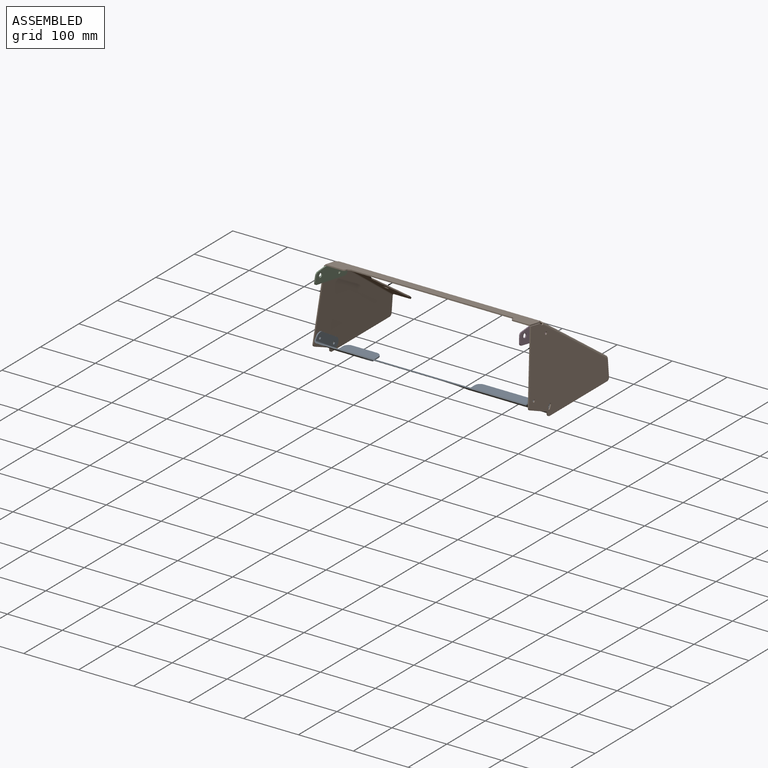
[diagram: assembled view]
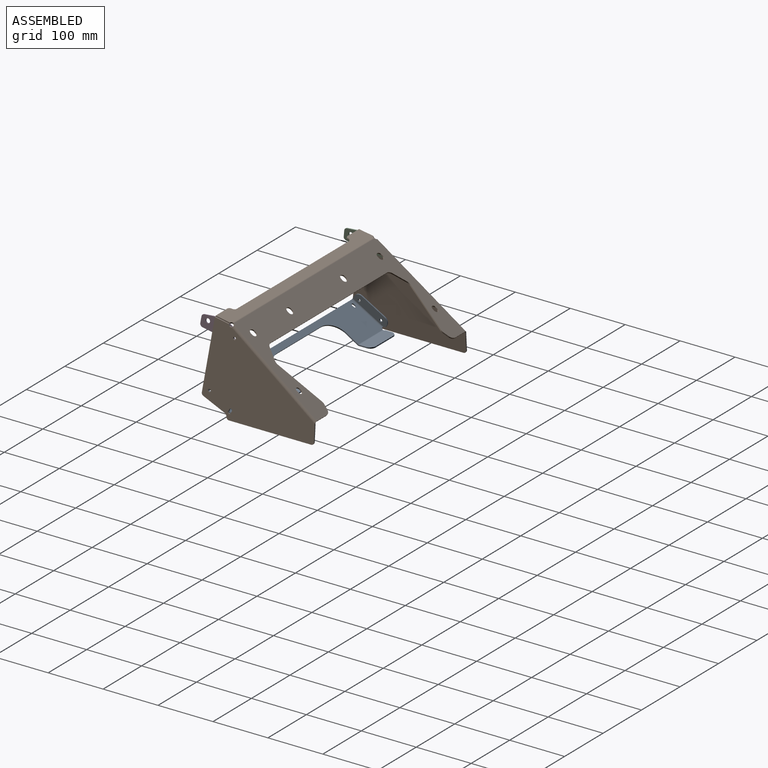
[diagram: assembled view, second angle]
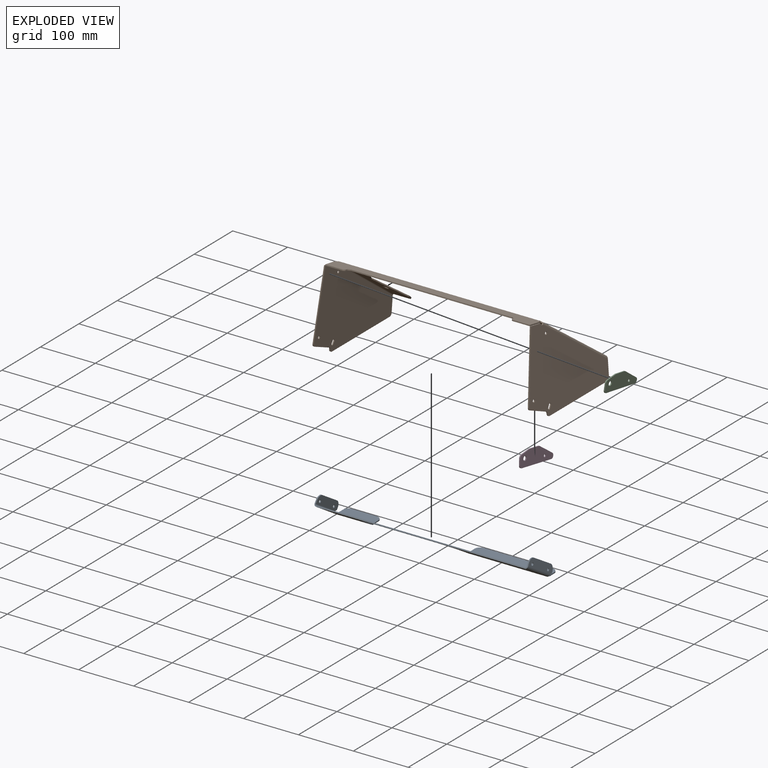
[diagram: exploded view]
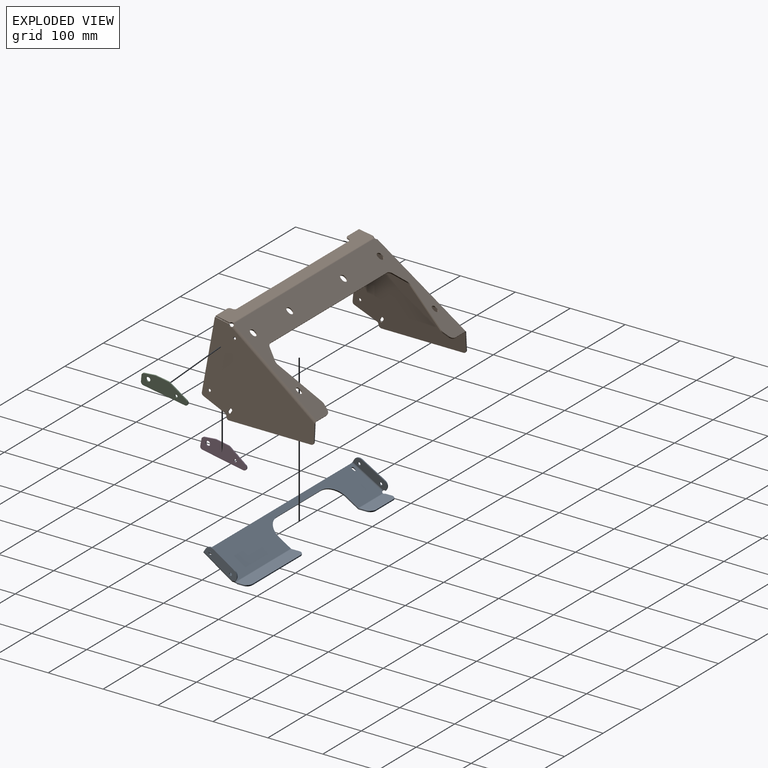
[diagram: exploded view, second angle]
ASSEMBLY  parts=4 mates=3
PART A: 70 faces, bbox 393.5x88.9x20 mm
  f0: plane 115x2mm, normal (0,1,0), area 230mm2, adj f12,f13,f14,f15
  f1: plane 24.34x2mm, normal (-1,0,0), area 48.7mm2, adj f12,f13,f15,f66
  f2: plane 380.12x2mm, normal (0,-1,0), area 760.2mm2, adj f12,f13,f28,f42
  f3: plane 3x2mm, normal (1,0,0), area 6mm2, adj f4,f10,f12,f13
  f4: cylinder r=2.5mm len=5mm, axis (0,0,1), area 15.7mm2, adj f3,f5,f12,f13
  f5: plane 3x2mm, normal (-1,0,0), area 6mm2, adj f4,f10,f12,f13
  f6: plane 3x2mm, normal (1,0,0), area 6mm2, adj f7,f9,f12,f13
  f7: cylinder r=2.5mm len=5mm, axis (0,0,1), area 15.7mm2, adj f6,f8,f12,f13
  f8: plane 3x2mm, normal (-1,0,0), area 6mm2, adj f7,f9,f12,f13
  f9: cylinder r=2.5mm len=5mm, axis (0,0,1), area 15.7mm2, adj f6,f8,f12,f13
  f10: cylinder r=2.5mm len=5mm, axis (0,0,1), area 15.7mm2, adj f3,f5,f12,f13
  f11: plane 24.34x2mm, normal (1,0,0), area 48.7mm2, adj f12,f13,f14,f54
  f12: plane 384.9x66.34mm, normal (0,0,-1), area 16184.6mm2, adj f0,f1,f2,f3,f4,f5,f6,f7
  f13: plane 384.9x66.34mm, normal (0,0,1), area 16184.6mm2, adj f0,f1,f2,f3,f4,f5,f6,f7
  f14: cylinder r=30mm len=30mm, axis (0,0,1), area 94.2mm2, adj f0,f11,f12,f13
  f15: cylinder r=30mm len=30mm, axis (0,0,-1), area 94.2mm2, adj f0,f1,f12,f13
  f16: cylinder r=4.19mm len=2.28mm, axis (0,0,1), area 5.4mm2, adj f12,f13,f29,f55
  f17: cylinder r=4.19mm len=2.28mm, axis (0,0,1), area 5.4mm2, adj f12,f13,f43,f67
  f18: plane 3.98x2.22mm, normal (-0.04,1,0), area 7.7mm2, adj f19,f24,f25,f27
  f19: plane 67.01x15.41mm, normal (-1,-0.04,0.06), area 949.6mm2, adj f18,f20,f21,f22,f23,f25,f26,f27
  f20: plane 47.09x3.75mm, normal (0.06,0,1), area 94.1mm2, adj f19,f24,f25,f26
  f21: cylinder r=2.5mm len=5.11mm, axis (-1,-0.04,0.06), area 31.4mm2, adj f19,f24
  f22: cylinder r=2.5mm len=5.11mm, axis (-1,-0.04,0.06), area 31.4mm2, adj f19,f24
  f23: plane 5.55x2.32mm, normal (0.04,-1,0), area 10.9mm2, adj f19,f24,f26,f28
  f24: plane 67.01x15.41mm, normal (1,0.04,-0.06), area 949.6mm2, adj f18,f20,f21,f22,f23,f25,f26,f27
  f25: cylinder r=10mm len=10.1mm, axis (-1,-0.04,0.06), area 31.4mm2, adj f18,f19,f20,f24
  f26: cylinder r=10mm len=10.1mm, axis (-1,-0.04,0.06), area 31.4mm2, adj f19,f20,f23,f24
  f27: cylinder r=4.19mm len=3.11mm, axis (1,0.04,-0.06), area 7mm2, adj f18,f19,f24,f29
  f28: bspline ~4.56x4.33mm, area 10.8mm2, adj f2,f23,f30,f31
  f29: bspline ~4.56x4.31mm, area 11.6mm2, adj f16,f27,f30,f31
  f30: cylinder r=4.3mm len=64.22mm, axis (0.04,-1,0), area 444.7mm2, adj f12,f19,f28,f29
  f31: cylinder r=2.3mm len=64.15mm, axis (0.04,-1,0), area 237.8mm2, adj f13,f24,f28,f29
  f32: plane 3.98x2.22mm, normal (0.04,1,0), area 7.7mm2, adj f33,f38,f39,f41
  f33: plane 67.01x15.41mm, normal (1,-0.04,0.06), area 949.6mm2, adj f32,f34,f35,f36,f37,f39,f40,f41
  f34: plane 47.09x3.75mm, normal (-0.06,0,1), area 94.1mm2, adj f33,f38,f39,f40
  f35: plane 5.55x2.32mm, normal (-0.04,-1,0), area 10.9mm2, adj f33,f38,f40,f42
  f36: cylinder r=2.5mm len=5.11mm, axis (1,-0.04,0.06), area 31.4mm2, adj f33,f38
  f37: cylinder r=2.5mm len=5.11mm, axis (1,-0.04,0.06), area 31.4mm2, adj f33,f38
  f38: plane 67.01x15.41mm, normal (-1,0.04,-0.06), area 949.6mm2, adj f32,f34,f35,f36,f37,f39,f40,f41
  f39: cylinder r=10mm len=10.1mm, axis (1,-0.04,0.06), area 31.4mm2, adj f32,f33,f34,f38
  f40: cylinder r=10mm len=10.1mm, axis (1,-0.04,0.06), area 31.4mm2, adj f33,f34,f35,f38
  f41: cylinder r=4.19mm len=3.11mm, axis (-1,0.04,-0.06), area 7mm2, adj f32,f33,f38,f43
  f42: bspline ~4.56x4.33mm, area 10.7mm2, adj f2,f35,f44,f45
  f43: bspline ~4.56x4.3mm, area 11.6mm2, adj f17,f41,f44,f45
  f44: cylinder r=4.3mm len=64.22mm, axis (0.04,1,0), area 444.7mm2, adj f12,f33,f42,f43
  f45: cylinder r=2.3mm len=64.15mm, axis (0.04,1,0), area 237.8mm2, adj f13,f38,f42,f43
  f46: plane 10.74x7.75mm, normal (-1,0,0), area 22.8mm2, adj f47,f50,f52,f53
  f47: plane 64.98x20.16mm, normal (0,0.53,-0.85), area 1499.2mm2, adj f46,f48,f49,f51,f52,f53,f56
  f48: plane 44.98x1.7mm, normal (0,0.85,0.53), area 90mm2, adj f47,f50,f51,f52
  f49: plane 12.74x8.99mm, normal (1,0,0), area 27.5mm2, adj f47,f50,f51,f54
  f50: plane 64.98x20.16mm, normal (0,-0.53,0.85), area 1499.2mm2, adj f46,f48,f49,f51,f52,f53,f57
  f51: cylinder r=10mm len=10mm, axis (0,0.53,-0.85), area 31.4mm2, adj f47,f48,f49,f50
  f52: cylinder r=10mm len=10mm, axis (0,0.53,-0.85), area 31.4mm2, adj f46,f47,f48,f50
  f53: cylinder r=4.19mm len=3.05mm, axis (0,-0.53,0.85), area 5.6mm2, adj f46,f47,f50,f55
  f54: plane 2.35x2.28mm, normal (1,0,0), area 3.7mm2, adj f11,f49,f56,f57
  f55: bspline ~2.35x2.28mm, area 3.7mm2, adj f16,f53,f56,f57
  f56: cylinder r=4.3mm len=63.53mm, axis (-1,0,0), area 152.6mm2, adj f12,f47,f54,f55
  f57: cylinder r=2.3mm len=63.53mm, axis (-1,0,0), area 81.6mm2, adj f13,f50,f54,f55
  f58: plane 10.74x7.75mm, normal (1,0,0), area 22.8mm2, adj f59,f62,f64,f65
  f59: plane 145.09x20.16mm, normal (0,0.53,-0.85), area 3403.3mm2, adj f58,f60,f61,f63,f64,f65,f68
  f60: plane 125.09x1.7mm, normal (0,0.85,0.53), area 250.2mm2, adj f59,f62,f63,f64
  f61: plane 12.74x8.99mm, normal (-1,0,0), area 27.5mm2, adj f59,f62,f63,f66
  f62: plane 145.09x20.16mm, normal (0,-0.53,0.85), area 3403.3mm2, adj f58,f60,f61,f63,f64,f65,f69
  f63: cylinder r=10mm len=10mm, axis (0,0.53,-0.85), area 31.4mm2, adj f59,f60,f61,f62
  f64: cylinder r=10mm len=10mm, axis (0,0.53,-0.85), area 31.4mm2, adj f58,f59,f60,f62
  f65: cylinder r=4.19mm len=3.05mm, axis (0,-0.53,0.85), area 5.6mm2, adj f58,f59,f62,f67
  f66: plane 2.35x2.28mm, normal (-1,0,0), area 3.7mm2, adj f1,f61,f68,f69
  f67: bspline ~2.35x2.28mm, area 3.7mm2, adj f17,f65,f68,f69
  f68: cylinder r=4.3mm len=143.65mm, axis (1,0,0), area 345mm2, adj f12,f59,f66,f67
  f69: cylinder r=2.3mm len=143.65mm, axis (1,0,0), area 184.5mm2, adj f13,f62,f66,f67
PART B: 110 faces, bbox 398.4x208.1x159 mm
  f0: plane 26.4x6.56mm, normal (1,-0.01,0), area 52.9mm2, adj f4,f5,f6,f11
  f1: plane 26.4x6.56mm, normal (-1,-0.01,0), area 52.9mm2, adj f2,f5,f6,f12
  f2: plane 30x1.97mm, normal (0,-0.98,0.17), area 60mm2, adj f1,f5,f6,f10
  f3: plane 292.4x1.97mm, normal (0,-0.98,0.17), area 584.8mm2, adj f5,f6,f7,f9
  f4: plane 30x1.97mm, normal (0,-0.98,0.17), area 60mm2, adj f0,f5,f6,f8
  f5: plane 373.05x29.02mm, normal (0,0.17,0.98), area 7946mm2, adj f0,f1,f2,f3,f4,f7,f8,f9
  f6: plane 373.05x29.02mm, normal (0,-0.17,-0.98), area 7946mm2, adj f0,f1,f2,f3,f4,f7,f8,f9
  f7: cylinder r=5mm len=5.27mm, axis (0,-0.17,-0.98), area 15.7mm2, adj f3,f5,f6,f8
  f8: cylinder r=5mm len=5.27mm, axis (0,0.17,0.98), area 15.7mm2, adj f4,f5,f6,f7
  f9: cylinder r=5mm len=5.27mm, axis (0,0.17,0.98), area 15.7mm2, adj f3,f5,f6,f10
  f10: cylinder r=5mm len=5.27mm, axis (0,0.17,0.98), area 15.7mm2, adj f2,f5,f6,f9
  f11: cylinder r=3.75mm len=3.38mm, axis (0,-0.17,-0.98), area 9.7mm2, adj f0,f5,f6,f106
  f12: cylinder r=3.75mm len=3.38mm, axis (0,-0.17,-0.98), area 9.7mm2, adj f1,f5,f6,f107
  f13: plane 4.41x3.97mm, normal (1,0,0), area 8mm2, adj f14,f45,f46,f47
  f14: cylinder r=4mm len=8mm, axis (0,-0.59,-0.81), area 25.1mm2, adj f13,f15,f46,f47
  f15: plane 4.41x3.97mm, normal (-1,0,0), area 8mm2, adj f14,f45,f46,f47
  f16: plane 3.6x3.38mm, normal (1,0,0), area 6mm2, adj f17,f44,f46,f47
  f17: cylinder r=5mm len=10mm, axis (0,-0.59,-0.81), area 31.4mm2, adj f16,f18,f46,f47
  f18: plane 3.6x3.38mm, normal (-1,0,0), area 6mm2, adj f17,f44,f46,f47
  f19: plane 3.6x3.38mm, normal (1,0,0), area 6mm2, adj f20,f43,f46,f47
  f20: cylinder r=5mm len=10mm, axis (0,-0.59,-0.81), area 31.4mm2, adj f19,f21,f46,f47
  f21: plane 3.6x3.38mm, normal (-1,0,0), area 6mm2, adj f20,f43,f46,f47
  f22: plane 69.25x51.08mm, normal (0.98,-0.17,0.12), area 172.1mm2, adj f46,f47,f48,f55
  f23: plane 8.91x7.24mm, normal (0.95,0.25,-0.18), area 20.1mm2, adj f46,f47,f48,f51
  f24: plane 25.11x1.62mm, normal (0,0.81,-0.59), area 50.2mm2, adj f46,f47,f51,f102
  f25: plane 25.11x1.62mm, normal (0,0.81,-0.59), area 50.2mm2, adj f46,f47,f49,f78
  f26: plane 8.91x7.24mm, normal (-0.95,0.25,-0.18), area 20.1mm2, adj f46,f47,f49,f53
  f27: plane 69.25x51.08mm, normal (-0.98,-0.17,0.12), area 172.1mm2, adj f46,f47,f50,f53
  f28: plane 19.28x14.78mm, normal (-0.88,0.38,-0.28), area 50.7mm2, adj f46,f47,f50,f54
  f29: plane 301.32x1.62mm, normal (0,0.81,-0.59), area 602.6mm2, adj f46,f47,f52,f54
  f30: plane 4.41x3.97mm, normal (-1,0,0), area 8mm2, adj f31,f41,f46,f47
  f31: cylinder r=4mm len=8mm, axis (0,-0.59,-0.81), area 25.1mm2, adj f30,f32,f46,f47
  f32: plane 4.41x3.97mm, normal (1,0,0), area 8mm2, adj f31,f41,f46,f47
  f33: plane 3.6x3.38mm, normal (-1,0,0), area 6mm2, adj f34,f40,f46,f47
  f34: cylinder r=5mm len=10mm, axis (0,-0.59,-0.81), area 31.4mm2, adj f33,f35,f46,f47
  f35: plane 3.6x3.38mm, normal (1,0,0), area 6mm2, adj f34,f40,f46,f47
  f36: plane 3.6x3.38mm, normal (-1,0,0), area 6mm2, adj f37,f39,f46,f47
  f37: cylinder r=5mm len=10mm, axis (0,-0.59,-0.81), area 31.4mm2, adj f36,f38,f46,f47
  f38: plane 3.6x3.38mm, normal (1,0,0), area 6mm2, adj f37,f39,f46,f47
  f39: cylinder r=5mm len=10mm, axis (0,-0.59,-0.81), area 31.4mm2, adj f36,f38,f46,f47
  f40: cylinder r=5mm len=10mm, axis (0,-0.59,-0.81), area 31.4mm2, adj f33,f35,f46,f47
  f41: cylinder r=4mm len=8mm, axis (0,-0.59,-0.81), area 25.1mm2, adj f30,f32,f46,f47
  f42: plane 19.28x14.78mm, normal (0.88,0.38,-0.28), area 50.7mm2, adj f46,f47,f52,f55
  f43: cylinder r=5mm len=10mm, axis (0,-0.59,-0.81), area 31.4mm2, adj f19,f21,f46,f47
  f44: cylinder r=5mm len=10mm, axis (0,-0.59,-0.81), area 31.4mm2, adj f16,f18,f46,f47
  f45: cylinder r=4mm len=8mm, axis (0,-0.59,-0.81), area 25.1mm2, adj f13,f15,f46,f47
  f46: plane 384.91x157.96mm, normal (0,0.59,0.81), area 27279.9mm2, adj f13,f14,f15,f16,f17,f18,f19,f20
  f47: plane 384.91x157.96mm, normal (0,-0.59,-0.81), area 27279.9mm2, adj f13,f14,f15,f16,f17,f18,f19,f20
  f48: cylinder r=10mm len=5.36mm, axis (0,0.59,0.81), area 10.5mm2, adj f22,f23,f46,f47
  f49: cylinder r=10mm len=9.51mm, axis (0,-0.59,-0.81), area 25.1mm2, adj f25,f26,f46,f47
  f50: cylinder r=10mm len=6.66mm, axis (0,-0.59,-0.81), area 14mm2, adj f27,f28,f46,f47
  f51: cylinder r=10mm len=9.51mm, axis (0,-0.59,-0.81), area 25.1mm2, adj f23,f24,f46,f47
  f52: cylinder r=10mm len=8.83mm, axis (0,-0.59,-0.81), area 21.6mm2, adj f29,f42,f46,f47
  f53: cylinder r=10mm len=5.36mm, axis (0,0.59,0.81), area 10.5mm2, adj f26,f27,f46,f47
  f54: cylinder r=10mm len=8.83mm, axis (0,0.59,0.81), area 21.6mm2, adj f28,f29,f46,f47
  f55: cylinder r=10mm len=6.66mm, axis (0,-0.59,-0.81), area 14mm2, adj f22,f42,f46,f47
  f56: cylinder r=3.75mm len=2.99mm, axis (0,-0.59,-0.81), area 5.4mm2, adj f46,f47,f79,f106
  f57: cylinder r=3.75mm len=2.99mm, axis (0,-0.59,-0.81), area 5.4mm2, adj f46,f47,f103,f107
  f58: plane 2.05x1.09mm, normal (-0.06,0.59,0.81), area 2.7mm2, adj f61,f71,f72,f77
  f59: plane 149.51x2mm, normal (0.07,0,-1), area 299mm2, adj f71,f72,f74,f75
  f60: plane 29.18x4.03mm, normal (0,1,0), area 58.2mm2, adj f71,f72,f75,f78
  f61: plane 24.71x4.5mm, normal (-0.07,0.17,0.98), area 50.2mm2, adj f58,f62,f71,f72
  f62: plane 125.07x17.56mm, normal (-0.01,-0.99,0.14), area 252.9mm2, adj f61,f71,f72,f73
  f63: plane 39.85x17.05mm, normal (0.06,-0.39,-0.92), area 86.6mm2, adj f71,f72,f73,f76
  f64: plane 4.42x2.57mm, normal (-0.04,-0.86,0.51), area 10mm2, adj f65,f69,f71,f72
  f65: cylinder r=2.5mm len=4.64mm, axis (-1,0,-0.07), area 15.7mm2, adj f64,f66,f71,f72
  f66: plane 4.42x2.57mm, normal (0.04,0.86,-0.51), area 10mm2, adj f65,f69,f71,f72
  f67: cylinder r=2.5mm len=5.13mm, axis (-1,0,-0.07), area 31.4mm2, adj f71,f72
  f68: cylinder r=2.5mm len=5.13mm, axis (-1,0,-0.07), area 31.4mm2, adj f71,f72
  f69: cylinder r=2.5mm len=4.64mm, axis (-1,0,-0.07), area 15.7mm2, adj f64,f66,f71,f72
  f70: plane 2.1x1.63mm, normal (0.01,-0.99,-0.12), area 3mm2, adj f71,f72,f74,f76
  f71: plane 205.54x156.98mm, normal (1,0,0.07), area 19826.6mm2, adj f58,f59,f60,f61,f62,f63,f64,f65
  f72: plane 205.54x156.98mm, normal (-1,0,-0.07), area 19826.6mm2, adj f58,f59,f60,f61,f62,f63,f64,f65
  f73: cylinder r=5mm len=5.42mm, axis (-1,0,-0.07), area 13.1mm2, adj f62,f63,f71,f72
  f74: cylinder r=5mm len=4.96mm, axis (1,0,0.07), area 14.5mm2, adj f59,f70,f71,f72
  f75: cylinder r=5mm len=5.13mm, axis (-1,0,-0.07), area 15.7mm2, adj f59,f60,f71,f72
  f76: cylinder r=5mm len=4.12mm, axis (-1,0,-0.07), area 10.5mm2, adj f63,f70,f71,f72
  f77: cylinder r=3.75mm len=4.64mm, axis (-1,0,-0.07), area 13.1mm2, adj f58,f71,f72,f79
  f78: bspline ~4.36x4.35mm, area 10.9mm2, adj f25,f60,f80,f81
  f79: bspline ~4.29x3.32mm, area 10.8mm2, adj f56,f77,f80,f81
  f80: cylinder r=4.3mm len=160.03mm, axis (0.04,0.81,-0.59), area 1257mm2, adj f46,f71,f78,f79
  f81: cylinder r=2.3mm len=158.85mm, axis (0.04,0.81,-0.59), area 672.3mm2, adj f47,f72,f78,f79
  f82: plane 2.05x1.09mm, normal (0.06,0.59,0.81), area 2.7mm2, adj f83,f95,f96,f101
  f83: plane 24.71x4.5mm, normal (0.07,0.17,0.98), area 50.2mm2, adj f82,f94,f95,f96
  f84: plane 29.18x4.03mm, normal (0,1,0), area 58.2mm2, adj f95,f96,f99,f102
  f85: plane 149.51x2mm, normal (-0.07,0,-1), area 299mm2, adj f95,f96,f98,f99
  f86: plane 2.1x1.63mm, normal (-0.01,-0.99,-0.12), area 3mm2, adj f95,f96,f97,f98
  f87: plane 39.85x17.05mm, normal (-0.06,-0.39,-0.92), area 86.6mm2, adj f95,f96,f97,f100
  f88: plane 4.42x2.57mm, normal (0.04,-0.86,0.51), area 10mm2, adj f89,f93,f95,f96
  f89: cylinder r=2.5mm len=4.64mm, axis (1,0,-0.07), area 15.7mm2, adj f88,f90,f95,f96
  f90: plane 4.42x2.57mm, normal (-0.04,0.86,-0.51), area 10mm2, adj f89,f93,f95,f96
  f91: cylinder r=2.5mm len=5.13mm, axis (1,0,-0.07), area 31.4mm2, adj f95,f96
  f92: cylinder r=2.5mm len=5.13mm, axis (1,0,-0.07), area 31.4mm2, adj f95,f96
  f93: cylinder r=2.5mm len=4.64mm, axis (1,0,-0.07), area 15.7mm2, adj f88,f90,f95,f96
  f94: plane 125.07x17.56mm, normal (0.01,-0.99,0.14), area 252.9mm2, adj f83,f95,f96,f100
  f95: plane 205.54x156.98mm, normal (-1,0,0.07), area 19826.6mm2, adj f82,f83,f84,f85,f86,f87,f88,f89
  f96: plane 205.54x156.98mm, normal (1,0,-0.07), area 19826.6mm2, adj f82,f83,f84,f85,f86,f87,f88,f89
  f97: cylinder r=5mm len=4.12mm, axis (1,0,-0.07), area 10.5mm2, adj f86,f87,f95,f96
  f98: cylinder r=5mm len=4.96mm, axis (-1,0,0.07), area 14.5mm2, adj f85,f86,f95,f96
  f99: cylinder r=5mm len=5.13mm, axis (1,0,-0.07), area 15.7mm2, adj f84,f85,f95,f96
  f100: cylinder r=5mm len=5.42mm, axis (1,0,-0.07), area 13.1mm2, adj f87,f94,f95,f96
  f101: cylinder r=3.75mm len=4.64mm, axis (1,0,-0.07), area 13.1mm2, adj f82,f95,f96,f103
  f102: bspline ~4.36x4.33mm, area 10.8mm2, adj f24,f84,f104,f105
  f103: bspline ~4.29x3.32mm, area 10.8mm2, adj f57,f101,f104,f105
  f104: cylinder r=4.3mm len=160.03mm, axis (-0.04,0.81,-0.59), area 1257mm2, adj f46,f95,f102,f103
  f105: cylinder r=2.3mm len=158.85mm, axis (-0.04,0.81,-0.59), area 672.4mm2, adj f47,f96,f102,f103
  f106: bspline ~2.37x2.13mm, area 3mm2, adj f11,f56,f108,f109
  f107: bspline ~2.37x2.13mm, area 3mm2, adj f12,f57,f108,f109
  f108: cylinder r=4.3mm len=366.29mm, axis (1,0,0), area 714.7mm2, adj f5,f46,f106,f107
  f109: cylinder r=2.3mm len=366.29mm, axis (1,0,0), area 382.3mm2, adj f6,f47,f106,f107
PART C: 13 faces, bbox 4.5x85.1x36.2 mm
  f0: plane 11.2x2.77mm, normal (-0.01,-0.99,0.14), area 22.4mm2, adj f7,f8,f9,f11
  f1: plane 20.94x2.12mm, normal (-0.07,-0.09,0.99), area 42mm2, adj f2,f7,f8,f9
  f2: plane 23.57x4.3mm, normal (-0.07,0.17,0.98), area 47.9mm2, adj f1,f7,f8,f10
  f3: plane 30.3x22.15mm, normal (-0.06,0.59,0.81), area 75mm2, adj f7,f8,f10,f12
  f4: cylinder r=4mm len=8.12mm, axis (1,0,0.07), area 50.3mm2, adj f7,f8
  f5: cylinder r=2.5mm len=5.13mm, axis (1,0,0.07), area 31.4mm2, adj f7,f8
  f6: plane 75.06x13.37mm, normal (0.07,-0.17,-0.98), area 152.4mm2, adj f7,f8,f11,f12
  f7: plane 85.06x36.07mm, normal (-1,0,-0.07), area 1781.2mm2, adj f0,f1,f2,f3,f4,f5,f6,f9
  f8: plane 85.06x36.07mm, normal (1,0,0.07), area 1781.2mm2, adj f0,f1,f2,f3,f4,f5,f6,f9
  f9: cylinder r=5mm len=4.52mm, axis (-1,0,-0.07), area 13.4mm2, adj f0,f1,f7,f8
  f10: cylinder r=5mm len=2.07mm, axis (1,0,0.07), area 4.5mm2, adj f2,f3,f7,f8
  f11: cylinder r=5mm len=5.74mm, axis (-1,0,-0.07), area 15.4mm2, adj f0,f6,f7,f8
  f12: cylinder r=5mm len=9.16mm, axis (-1,0,-0.07), area 26.9mm2, adj f3,f6,f7,f8
PART D: same geometry as C
PLACE A rot(axis=(-1,0,0),31.4deg) t=(2.69,-72.26,-61.06)mm
PLACE B at identity fixed
PLACE C rot(axis=(0,1,0),8deg) t=(-383.52,0,27.21)mm
PLACE D t=(-3.99,0,-0.28)mm
MATE fastened B.f91 <-> C.f5  axis (1,0,-0.07) through (-185.15,-46.02,53.75)mm
MATE revolute A.f22 <-> B.f92  axis (-1,0,0.07) through (-191.73,-87.01,-40.32)mm
MATE fastened B.f67 <-> D.f5  axis (-1,0,-0.07) through (190.75,-46.02,53.75)mm
